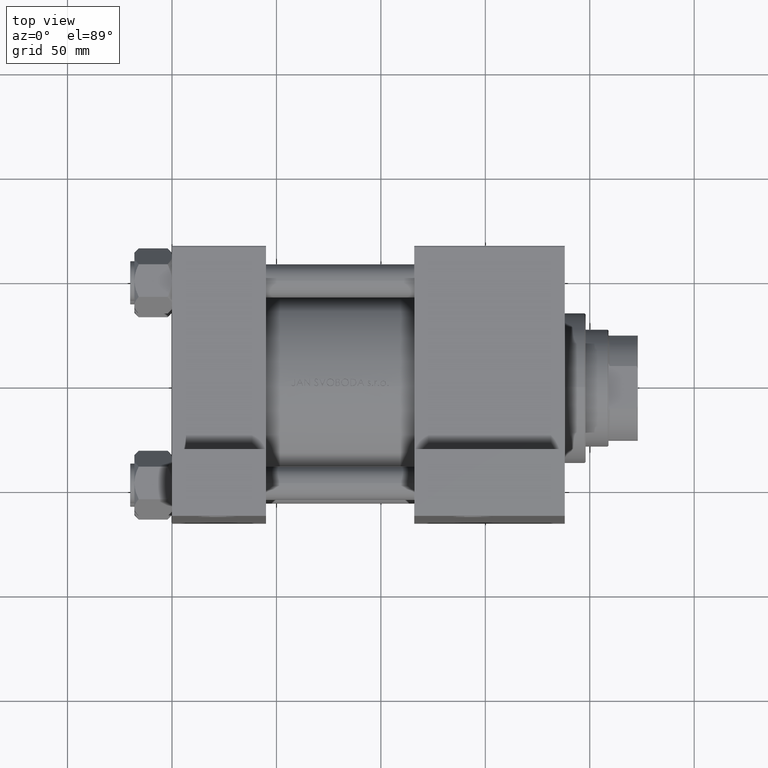
[diagram: clean part render]
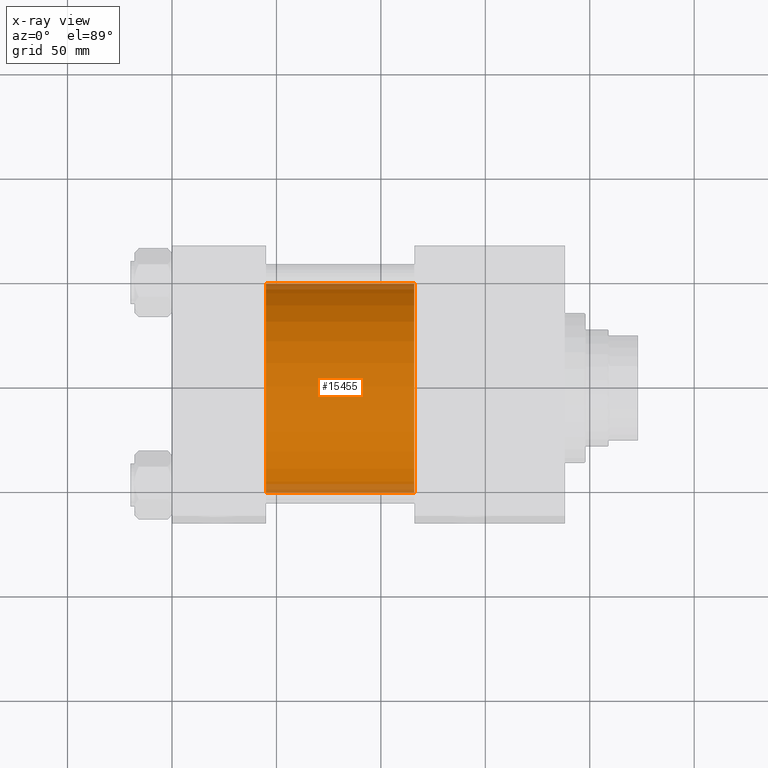
[diagram: x-ray — body ghosted, one internal face saturated and labeled with its STEP entity id]
A machine part, top view, then the same camera in x-ray: the body is ghosted and one INTERNAL B-rep face — a face not visible from any outside direction — is saturated and labeled: STEP entity #15455.
In plain terms, the highlighted cylindrical surface (partial cylindrical patch) has radius 50 mm, axis along (-1, -0, 0).
Its self-contained STEP definition (entity closure, byte-faithful):
#2400 = LINE ( 'NONE', #42980, #14810 ) ;
#2409 = VECTOR ( 'NONE', #33163, 1000.000000000000000 ) ;
#2528 = CARTESIAN_POINT ( 'NONE',  ( 45.00000000000000000, 0.000000000000000000, -1.999999999999988010 ) ) ;
#4036 = ORIENTED_EDGE ( 'NONE', *, *, #44650, .F. ) ;
#6005 = CARTESIAN_POINT ( 'NONE',  ( 115.9999999999999858, 0.000000000000000000, 48.00000000000001421 ) ) ;
#8031 = ORIENTED_EDGE ( 'NONE', *, *, #22162, .T. ) ;
#9060 = AXIS2_PLACEMENT_3D ( 'NONE', #2528, #31665, #17573 ) ;
#10901 = DIRECTION ( 'NONE',  ( 0.000000000000000000, 0.000000000000000000, -1.000000000000000000 ) ) ;
#12375 = ORIENTED_EDGE ( 'NONE', *, *, #21283, .T. ) ;
#13010 = DIRECTION ( 'NONE',  ( 0.000000000000000000, 0.000000000000000000, 1.000000000000000000 ) ) ;
#14810 = VECTOR ( 'NONE', #17208, 1000.000000000000000 ) ;
#15012 = CARTESIAN_POINT ( 'NONE',  ( 115.9999999999999858, 0.000000000000000000, -1.999999999999988010 ) ) ;
#15185 = LINE ( 'NONE', #25653, #2409 ) ;
#15455 = ADVANCED_FACE ( 'NONE', ( #35352 ), #27827, .F. ) ;
#17208 = DIRECTION ( 'NONE',  ( -1.000000000000000000, -0.000000000000000000, -0.000000000000000000 ) ) ;
#17573 = DIRECTION ( 'NONE',  ( 0.000000000000000000, 0.000000000000000000, -1.000000000000000000 ) ) ;
#20303 = CARTESIAN_POINT ( 'NONE',  ( 115.9999999999999858, 0.000000000000000000, -1.999999999999988010 ) ) ;
#20700 = VERTEX_POINT ( 'NONE', #25600 ) ;
#21217 = VERTEX_POINT ( 'NONE', #32065 ) ;
#21283 = EDGE_CURVE ( 'NONE', #28787, #21217, #38078, .T. ) ;
#21543 = VERTEX_POINT ( 'NONE', #32415 ) ;
#22162 = EDGE_CURVE ( 'NONE', #21217, #20700, #2400, .T. ) ;
#25184 = EDGE_CURVE ( 'NONE', #28787, #21543, #15185, .T. ) ;
#25600 = CARTESIAN_POINT ( 'NONE',  ( 45.00000000000000000, 6.123233995736766085E-15, -51.99999999999999289 ) ) ;
#25653 = CARTESIAN_POINT ( 'NONE',  ( 115.9999999999999858, 0.000000000000000000, 48.00000000000001421 ) ) ;
#26094 = CIRCLE ( 'NONE', #9060, 50.00000000000000000 ) ;
#27827 = CYLINDRICAL_SURFACE ( 'NONE', #28611, 50.00000000000000000 ) ;
#28534 = DIRECTION ( 'NONE',  ( -1.000000000000000000, -0.000000000000000000, -0.000000000000000000 ) ) ;
#28611 = AXIS2_PLACEMENT_3D ( 'NONE', #20303, #28534, #13010 ) ;
#28780 = AXIS2_PLACEMENT_3D ( 'NONE', #15012, #32766, #10901 ) ;
#28787 = VERTEX_POINT ( 'NONE', #6005 ) ;
#31665 = DIRECTION ( 'NONE',  ( 1.000000000000000000, 0.000000000000000000, 0.000000000000000000 ) ) ;
#32065 = CARTESIAN_POINT ( 'NONE',  ( 115.9999999999999858, 6.123233995736766085E-15, -51.99999999999999289 ) ) ;
#32415 = CARTESIAN_POINT ( 'NONE',  ( 45.00000000000000000, 0.000000000000000000, 48.00000000000001421 ) ) ;
#32467 = EDGE_LOOP ( 'NONE', ( #12375, #8031, #4036, #44715 ) ) ;
#32766 = DIRECTION ( 'NONE',  ( 1.000000000000000000, 0.000000000000000000, 0.000000000000000000 ) ) ;
#33163 = DIRECTION ( 'NONE',  ( -1.000000000000000000, -0.000000000000000000, -0.000000000000000000 ) ) ;
#35352 = FACE_OUTER_BOUND ( 'NONE', #32467, .T. ) ;
#38078 = CIRCLE ( 'NONE', #28780, 50.00000000000000000 ) ;
#42980 = CARTESIAN_POINT ( 'NONE',  ( 115.9999999999999858, 6.123233995736766085E-15, -51.99999999999999289 ) ) ;
#44650 = EDGE_CURVE ( 'NONE', #21543, #20700, #26094, .T. ) ;
#44715 = ORIENTED_EDGE ( 'NONE', *, *, #25184, .F. ) ;